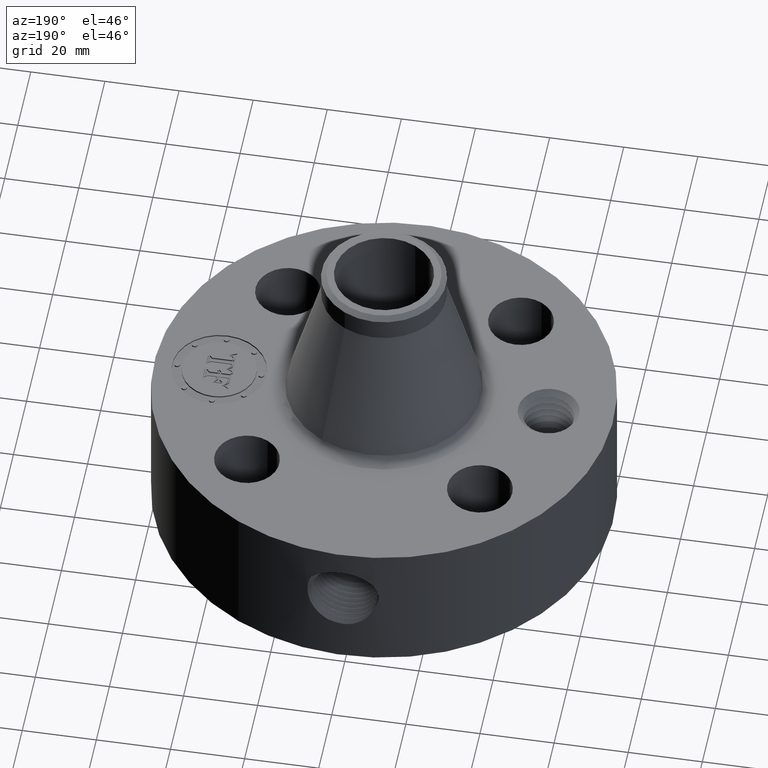
[diagram: clean part render]
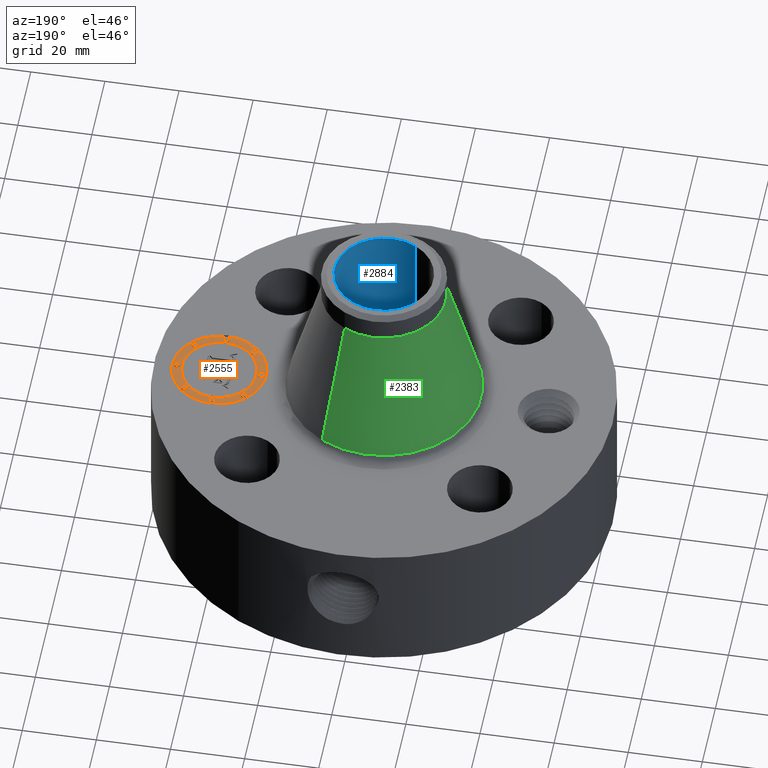
[diagram: same view with three faces highlighted in distinct colors, each labeled with its STEP entity id]
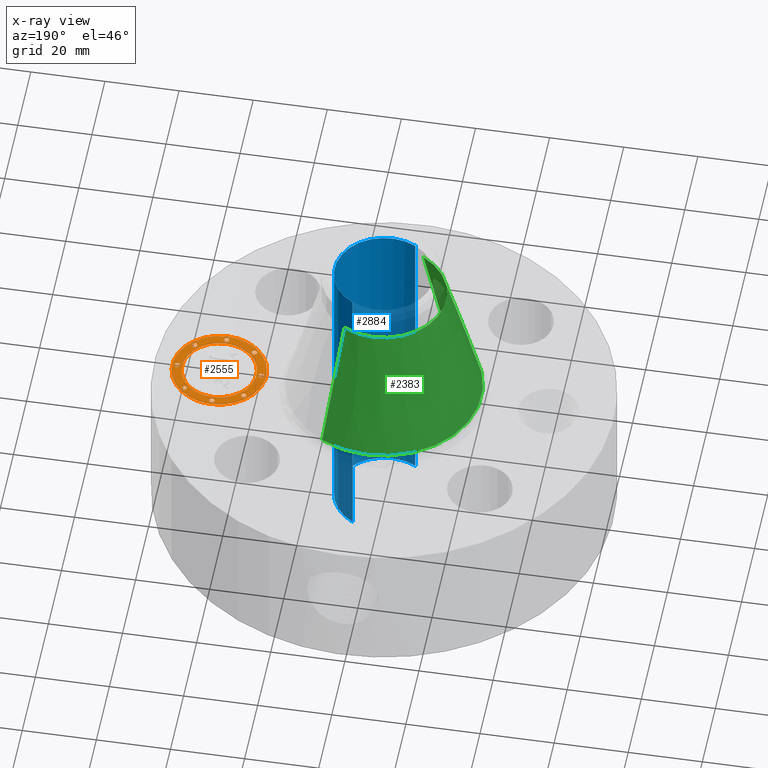
[diagram: x-ray of the same camera — body ghosted, the three highlighted faces saturated]
A machine part, auxiliary view with three faces highlighted in distinct colors.
The next image is the same camera in x-ray (body ghosted, the three faces saturated) — at least one of them is partly hidden behind the body in this view.
Their STEP definitions:

[orange] entity #2555 — the highlighted planar face has unit normal (0, 0, 1).
#1802=AXIS2_PLACEMENT_3D('Circle Axis2P3D',#1800,#1801,$) ;
#1829=AXIS2_PLACEMENT_3D('Circle Axis2P3D',#1827,#1828,$) ;
#2387=AXIS2_PLACEMENT_3D('Plane Axis2P3D',#2384,#2385,#2386) ;
#2395=AXIS2_PLACEMENT_3D('Circle Axis2P3D',#2393,#2394,$) ;
#2404=AXIS2_PLACEMENT_3D('Circle Axis2P3D',#2402,#2403,$) ;
#2413=AXIS2_PLACEMENT_3D('Circle Axis2P3D',#2411,#2412,$) ;
#2422=AXIS2_PLACEMENT_3D('Circle Axis2P3D',#2420,#2421,$) ;
#2431=AXIS2_PLACEMENT_3D('Circle Axis2P3D',#2429,#2430,$) ;
#2440=AXIS2_PLACEMENT_3D('Circle Axis2P3D',#2438,#2439,$) ;
#2449=AXIS2_PLACEMENT_3D('Circle Axis2P3D',#2447,#2448,$) ;
#2458=AXIS2_PLACEMENT_3D('Circle Axis2P3D',#2456,#2457,$) ;
#2467=AXIS2_PLACEMENT_3D('Circle Axis2P3D',#2465,#2466,$) ;
#2476=AXIS2_PLACEMENT_3D('Circle Axis2P3D',#2474,#2475,$) ;
#2485=AXIS2_PLACEMENT_3D('Circle Axis2P3D',#2483,#2484,$) ;
#2494=AXIS2_PLACEMENT_3D('Circle Axis2P3D',#2492,#2493,$) ;
#2503=AXIS2_PLACEMENT_3D('Circle Axis2P3D',#2501,#2502,$) ;
#2512=AXIS2_PLACEMENT_3D('Circle Axis2P3D',#2510,#2511,$) ;
#2521=AXIS2_PLACEMENT_3D('Circle Axis2P3D',#2519,#2520,$) ;
#2530=AXIS2_PLACEMENT_3D('Circle Axis2P3D',#2528,#2529,$) ;
#2539=AXIS2_PLACEMENT_3D('Circle Axis2P3D',#2537,#2538,$) ;
#2548=AXIS2_PLACEMENT_3D('Circle Axis2P3D',#2546,#2547,$) ;
#1797=CARTESIAN_POINT('Vertex',(1.75000000001,-0.499999995002,1.54500000001)) ;
#1800=CARTESIAN_POINT('Axis2P3D Location',(1.75000000001,-4.38103225949E-015,1.54500000001)) ;
#1804=CARTESIAN_POINT('Vertex',(1.75000000001,0.499999995002,1.54500000001)) ;
#1827=CARTESIAN_POINT('Axis2P3D Location',(1.75000000001,-4.38103225949E-015,1.54500000001)) ;
#2384=CARTESIAN_POINT('Axis2P3D Location',(0.,0.,1.54500000001)) ;
#2393=CARTESIAN_POINT('Axis2P3D Location',(1.75000000001,-4.38103225949E-015,1.54500000001)) ;
#2397=CARTESIAN_POINT('Vertex',(1.75000000001,-0.393939390002,1.54500000001)) ;
#2399=CARTESIAN_POINT('Vertex',(1.75000000001,0.393939390002,1.54500000001)) ;
#2402=CARTESIAN_POINT('Axis2P3D Location',(1.75000000001,-4.38103225949E-015,1.54500000001)) ;
#2411=CARTESIAN_POINT('Axis2P3D Location',(1.30303030751,-5.65258331292E-015,1.54500000001)) ;
#2415=CARTESIAN_POINT('Vertex',(1.30303030751,-0.0303030300001,1.54500000001)) ;
#2417=CARTESIAN_POINT('Vertex',(1.30303030751,0.0303030300001,1.54500000001)) ;
#2420=CARTESIAN_POINT('Axis2P3D Location',(1.30303030751,-5.65258331292E-015,1.54500000001)) ;
#2429=CARTESIAN_POINT('Axis2P3D Location',(1.75000000001,0.446969692502,1.54500000001)) ;
#2433=CARTESIAN_POINT('Vertex',(1.75000000001,0.416666662502,1.54500000001)) ;
#2435=CARTESIAN_POINT('Vertex',(1.75000000001,0.477272722502,1.54500000001)) ;
#2438=CARTESIAN_POINT('Axis2P3D Location',(1.75000000001,0.446969692502,1.54500000001)) ;
#2447=CARTESIAN_POINT('Axis2P3D Location',(1.43394469945,0.316055300553,1.54500000001)) ;
#2451=CARTESIAN_POINT('Vertex',(1.43394469945,0.285752270553,1.54500000001)) ;
#2453=CARTESIAN_POINT('Vertex',(1.43394469945,0.346358330553,1.54500000001)) ;
#2456=CARTESIAN_POINT('Axis2P3D Location',(1.43394469945,0.316055300553,1.54500000001)) ;
#2465=CARTESIAN_POINT('Axis2P3D Location',(2.19696969251,7.34549412211E-015,1.54500000001)) ;
#2469=CARTESIAN_POINT('Vertex',(2.19696969251,-0.0303030300001,1.54500000001)) ;
#2471=CARTESIAN_POINT('Vertex',(2.19696969251,0.0303030300001,1.54500000001)) ;
#2474=CARTESIAN_POINT('Axis2P3D Location',(2.19696969251,7.34549412211E-015,1.54500000001)) ;
#2483=CARTESIAN_POINT('Axis2P3D Location',(2.06605530056,0.316055300553,1.54500000001)) ;
#2487=CARTESIAN_POINT('Vertex',(2.06605530056,0.285752270553,1.54500000001)) ;
#2489=CARTESIAN_POINT('Vertex',(2.06605530056,0.346358330553,1.54500000001)) ;
#2492=CARTESIAN_POINT('Axis2P3D Location',(2.06605530056,0.316055300553,1.54500000001)) ;
#2501=CARTESIAN_POINT('Axis2P3D Location',(1.75000000001,-0.446969692502,1.54500000001)) ;
#2505=CARTESIAN_POINT('Vertex',(1.75000000001,-0.416666662502,1.54500000001)) ;
#2507=CARTESIAN_POINT('Vertex',(1.75000000001,-0.477272722502,1.54500000001)) ;
#2510=CARTESIAN_POINT('Axis2P3D Location',(1.75000000001,-0.446969692502,1.54500000001)) ;
#2519=CARTESIAN_POINT('Axis2P3D Location',(1.43394469945,-0.316055300553,1.54500000001)) ;
#2523=CARTESIAN_POINT('Vertex',(1.43394469945,-0.285752270553,1.54500000001)) ;
#2525=CARTESIAN_POINT('Vertex',(1.43394469945,-0.346358330553,1.54500000001)) ;
#2528=CARTESIAN_POINT('Axis2P3D Location',(1.43394469945,-0.316055300553,1.54500000001)) ;
#2537=CARTESIAN_POINT('Axis2P3D Location',(2.06605530056,-0.316055300553,1.54500000001)) ;
#2541=CARTESIAN_POINT('Vertex',(2.06605530056,-0.285752270553,1.54500000001)) ;
#2543=CARTESIAN_POINT('Vertex',(2.06605530056,-0.346358330553,1.54500000001)) ;
#2546=CARTESIAN_POINT('Axis2P3D Location',(2.06605530056,-0.316055300553,1.54500000001)) ;
#1801=DIRECTION('Axis2P3D Direction',(0.,0.,0.0393700787402)) ;
#1828=DIRECTION('Axis2P3D Direction',(0.,0.,0.0393700787402)) ;
#2385=DIRECTION('Axis2P3D Direction',(0.,0.,0.0393700787402)) ;
#2386=DIRECTION('Axis2P3D XDirection',(0.0393700787402,0.,0.)) ;
#2394=DIRECTION('Axis2P3D Direction',(0.,0.,0.0393700787402)) ;
#2403=DIRECTION('Axis2P3D Direction',(0.,0.,0.0393700787402)) ;
#2412=DIRECTION('Axis2P3D Direction',(0.,0.,0.0393700787402)) ;
#2421=DIRECTION('Axis2P3D Direction',(0.,0.,0.0393700787402)) ;
#2430=DIRECTION('Axis2P3D Direction',(0.,0.,0.0393700787402)) ;
#2439=DIRECTION('Axis2P3D Direction',(0.,0.,0.0393700787402)) ;
#2448=DIRECTION('Axis2P3D Direction',(0.,0.,0.0393700787402)) ;
#2457=DIRECTION('Axis2P3D Direction',(0.,0.,0.0393700787402)) ;
#2466=DIRECTION('Axis2P3D Direction',(0.,0.,0.0393700787402)) ;
#2475=DIRECTION('Axis2P3D Direction',(0.,0.,0.0393700787402)) ;
#2484=DIRECTION('Axis2P3D Direction',(0.,0.,0.0393700787402)) ;
#2493=DIRECTION('Axis2P3D Direction',(0.,0.,0.0393700787402)) ;
#2502=DIRECTION('Axis2P3D Direction',(0.,0.,0.0393700787402)) ;
#2511=DIRECTION('Axis2P3D Direction',(0.,0.,0.0393700787402)) ;
#2520=DIRECTION('Axis2P3D Direction',(0.,0.,0.0393700787402)) ;
#2529=DIRECTION('Axis2P3D Direction',(0.,0.,0.0393700787402)) ;
#2538=DIRECTION('Axis2P3D Direction',(0.,0.,0.0393700787402)) ;
#2547=DIRECTION('Axis2P3D Direction',(0.,0.,0.0393700787402)) ;
#2390=ORIENTED_EDGE('',*,*,#1806,.T.) ;
#2391=ORIENTED_EDGE('',*,*,#1831,.T.) ;
#2408=ORIENTED_EDGE('',*,*,#2401,.F.) ;
#2409=ORIENTED_EDGE('',*,*,#2406,.F.) ;
#2426=ORIENTED_EDGE('',*,*,#2419,.F.) ;
#2427=ORIENTED_EDGE('',*,*,#2424,.F.) ;
#2444=ORIENTED_EDGE('',*,*,#2437,.F.) ;
#2445=ORIENTED_EDGE('',*,*,#2442,.F.) ;
#2462=ORIENTED_EDGE('',*,*,#2455,.F.) ;
#2463=ORIENTED_EDGE('',*,*,#2460,.F.) ;
#2480=ORIENTED_EDGE('',*,*,#2473,.F.) ;
#2481=ORIENTED_EDGE('',*,*,#2478,.F.) ;
#2498=ORIENTED_EDGE('',*,*,#2491,.F.) ;
#2499=ORIENTED_EDGE('',*,*,#2496,.F.) ;
#2516=ORIENTED_EDGE('',*,*,#2509,.F.) ;
#2517=ORIENTED_EDGE('',*,*,#2514,.F.) ;
#2534=ORIENTED_EDGE('',*,*,#2527,.F.) ;
#2535=ORIENTED_EDGE('',*,*,#2532,.F.) ;
#2552=ORIENTED_EDGE('',*,*,#2545,.F.) ;
#2553=ORIENTED_EDGE('',*,*,#2550,.F.) ;
#2410=FACE_BOUND('',#2407,.T.) ;
#2428=FACE_BOUND('',#2425,.T.) ;
#2446=FACE_BOUND('',#2443,.T.) ;
#2464=FACE_BOUND('',#2461,.T.) ;
#2482=FACE_BOUND('',#2479,.T.) ;
#2500=FACE_BOUND('',#2497,.T.) ;
#2518=FACE_BOUND('',#2515,.T.) ;
#2536=FACE_BOUND('',#2533,.T.) ;
#2554=FACE_BOUND('',#2551,.T.) ;
#2555=ADVANCED_FACE('PartBody',(#2392,#2410,#2428,#2446,#2464,#2482,#2500,#2518,#2536,#2554),#2388,.T.) ;
#1803=CIRCLE('generated circle',#1802,0.499999995002) ;
#1830=CIRCLE('generated circle',#1829,0.499999995002) ;
#2396=CIRCLE('generated circle',#2395,0.393939390002) ;
#2405=CIRCLE('generated circle',#2404,0.393939390002) ;
#2414=CIRCLE('generated circle',#2413,0.0303030300001) ;
#2423=CIRCLE('generated circle',#2422,0.0303030300001) ;
#2432=CIRCLE('generated circle',#2431,0.0303030300001) ;
#2441=CIRCLE('generated circle',#2440,0.0303030300001) ;
#2450=CIRCLE('generated circle',#2449,0.0303030300001) ;
#2459=CIRCLE('generated circle',#2458,0.0303030300001) ;
#2468=CIRCLE('generated circle',#2467,0.0303030300001) ;
#2477=CIRCLE('generated circle',#2476,0.0303030300001) ;
#2486=CIRCLE('generated circle',#2485,0.0303030300001) ;
#2495=CIRCLE('generated circle',#2494,0.0303030300001) ;
#2504=CIRCLE('generated circle',#2503,0.0303030300001) ;
#2513=CIRCLE('generated circle',#2512,0.0303030300001) ;
#2522=CIRCLE('generated circle',#2521,0.0303030300001) ;
#2531=CIRCLE('generated circle',#2530,0.0303030300001) ;
#2540=CIRCLE('generated circle',#2539,0.0303030300001) ;
#2549=CIRCLE('generated circle',#2548,0.0303030300001) ;
#1806=EDGE_CURVE('',#1805,#1798,#1803,.T.) ;
#1831=EDGE_CURVE('',#1798,#1805,#1830,.T.) ;
#2401=EDGE_CURVE('',#2398,#2400,#2396,.T.) ;
#2406=EDGE_CURVE('',#2400,#2398,#2405,.T.) ;
#2419=EDGE_CURVE('',#2416,#2418,#2414,.T.) ;
#2424=EDGE_CURVE('',#2418,#2416,#2423,.T.) ;
#2437=EDGE_CURVE('',#2434,#2436,#2432,.T.) ;
#2442=EDGE_CURVE('',#2436,#2434,#2441,.T.) ;
#2455=EDGE_CURVE('',#2452,#2454,#2450,.T.) ;
#2460=EDGE_CURVE('',#2454,#2452,#2459,.T.) ;
#2473=EDGE_CURVE('',#2470,#2472,#2468,.T.) ;
#2478=EDGE_CURVE('',#2472,#2470,#2477,.T.) ;
#2491=EDGE_CURVE('',#2488,#2490,#2486,.T.) ;
#2496=EDGE_CURVE('',#2490,#2488,#2495,.T.) ;
#2509=EDGE_CURVE('',#2506,#2508,#2504,.T.) ;
#2514=EDGE_CURVE('',#2508,#2506,#2513,.T.) ;
#2527=EDGE_CURVE('',#2524,#2526,#2522,.T.) ;
#2532=EDGE_CURVE('',#2526,#2524,#2531,.T.) ;
#2545=EDGE_CURVE('',#2542,#2544,#2540,.T.) ;
#2550=EDGE_CURVE('',#2544,#2542,#2549,.T.) ;
#2389=EDGE_LOOP('',(#2390,#2391)) ;
#2407=EDGE_LOOP('',(#2408,#2409)) ;
#2425=EDGE_LOOP('',(#2426,#2427)) ;
#2443=EDGE_LOOP('',(#2444,#2445)) ;
#2461=EDGE_LOOP('',(#2462,#2463)) ;
#2479=EDGE_LOOP('',(#2480,#2481)) ;
#2497=EDGE_LOOP('',(#2498,#2499)) ;
#2515=EDGE_LOOP('',(#2516,#2517)) ;
#2533=EDGE_LOOP('',(#2534,#2535)) ;
#2551=EDGE_LOOP('',(#2552,#2553)) ;
#2392=FACE_OUTER_BOUND('',#2389,.T.) ;
#2388=PLANE('',#2387) ;
#1798=VERTEX_POINT('',#1797) ;
#1805=VERTEX_POINT('',#1804) ;
#2398=VERTEX_POINT('',#2397) ;
#2400=VERTEX_POINT('',#2399) ;
#2416=VERTEX_POINT('',#2415) ;
#2418=VERTEX_POINT('',#2417) ;
#2434=VERTEX_POINT('',#2433) ;
#2436=VERTEX_POINT('',#2435) ;
#2452=VERTEX_POINT('',#2451) ;
#2454=VERTEX_POINT('',#2453) ;
#2470=VERTEX_POINT('',#2469) ;
#2472=VERTEX_POINT('',#2471) ;
#2488=VERTEX_POINT('',#2487) ;
#2490=VERTEX_POINT('',#2489) ;
#2506=VERTEX_POINT('',#2505) ;
#2508=VERTEX_POINT('',#2507) ;
#2524=VERTEX_POINT('',#2523) ;
#2526=VERTEX_POINT('',#2525) ;
#2542=VERTEX_POINT('',#2541) ;
#2544=VERTEX_POINT('',#2543) ;

[blue] entity #2884 — the highlighted cylindrical surface (partial cylindrical patch) has radius 13.3223 mm, axis along (0, 0, -1).
#2071=AXIS2_PLACEMENT_3D('Circle Axis2P3D',#2069,#2070,$) ;
#2815=AXIS2_PLACEMENT_3D('Cylinder Axis2P3D',#2812,#2813,#2814) ;
#2819=AXIS2_PLACEMENT_3D('Circle Axis2P3D',#2817,#2818,$) ;
#2069=CARTESIAN_POINT('Axis2P3D Location',(0.,0.,0.)) ;
#2073=CARTESIAN_POINT('Vertex',(0.251458694999,0.460292053713,2.79741234551E-016)) ;
#2075=CARTESIAN_POINT('Vertex',(-0.251458694999,-0.460292053713,2.79741234551E-016)) ;
#2812=CARTESIAN_POINT('Axis2P3D Location',(0.,0.,1.65500000001)) ;
#2817=CARTESIAN_POINT('Axis2P3D Location',(0.,0.,3.31000000001)) ;
#2821=CARTESIAN_POINT('Vertex',(0.251458694999,0.460292053713,3.31000000001)) ;
#2823=CARTESIAN_POINT('Vertex',(-0.251458694999,-0.460292053713,3.31000000001)) ;
#2826=CARTESIAN_POINT('Line Origine',(0.251458694999,0.460292053713,1.65500000001)) ;
#2831=CARTESIAN_POINT('Line Origine',(-0.251458694999,-0.460292053713,1.65500000001)) ;
#2843=CARTESIAN_POINT('Control Point',(0.109697820237,-0.512900222497,0.880071807678)) ;
#2844=CARTESIAN_POINT('Control Point',(0.103067995138,-0.514318192952,0.867935994238)) ;
#2845=CARTESIAN_POINT('Control Point',(0.0947719695419,-0.515980503399,0.856739003863)) ;
#2846=CARTESIAN_POINT('Control Point',(0.0849803702637,-0.51773919703,0.846766683973)) ;
#2847=CARTESIAN_POINT('Control Point',(0.0538199881072,-0.522434964879,0.82278473966)) ;
#2848=CARTESIAN_POINT('Control Point',(0.014949330597,-0.525251537098,0.811930833717)) ;
#2849=CARTESIAN_POINT('Control Point',(-0.0116326804145,-0.525346375616,0.811582790696)) ;
#2850=CARTESIAN_POINT('Control Point',(-0.0508447925068,-0.522756079786,0.821451412034)) ;
#2851=CARTESIAN_POINT('Control Point',(-0.0826523564023,-0.518124437443,0.844683886722)) ;
#2852=CARTESIAN_POINT('Control Point',(-0.0927261783304,-0.516359982355,0.854453516056)) ;
#2853=CARTESIAN_POINT('Control Point',(-0.117112916642,-0.511563161852,0.885769043993)) ;
#2854=CARTESIAN_POINT('Control Point',(-0.128164416094,-0.508593381511,0.925004093711)) ;
#2855=CARTESIAN_POINT('Control Point',(-0.128487390485,-0.508500379864,0.951961602389)) ;
#2856=CARTESIAN_POINT('Control Point',(-0.121927405505,-0.510284589305,0.977542086655)) ;
#2857=CARTESIAN_POINT('Control Point',(-0.109697820237,-0.512900222497,0.99992819233)) ;
#2858=CARTESIAN_POINT('Vertex',(0.109697820237,-0.512900222497,0.880071807678)) ;
#2860=CARTESIAN_POINT('Vertex',(-0.109697820237,-0.512900222497,0.99992819233)) ;
#2864=CARTESIAN_POINT('Control Point',(-0.109697820237,-0.512900222497,0.99992819233)) ;
#2865=CARTESIAN_POINT('Control Point',(-0.103067995138,-0.514318192952,1.01206400577)) ;
#2866=CARTESIAN_POINT('Control Point',(-0.0947719695411,-0.515980503399,1.02326099615)) ;
#2867=CARTESIAN_POINT('Control Point',(-0.0849803702652,-0.517739197029,1.03323331603)) ;
#2868=CARTESIAN_POINT('Control Point',(-0.0538199881087,-0.522434964879,1.05721526035)) ;
#2869=CARTESIAN_POINT('Control Point',(-0.0149493305982,-0.525251537098,1.06806916629)) ;
#2870=CARTESIAN_POINT('Control Point',(0.0116326804146,-0.525346375616,1.06841720931)) ;
#2871=CARTESIAN_POINT('Control Point',(0.0508447925082,-0.522756079786,1.05854858797)) ;
#2872=CARTESIAN_POINT('Control Point',(0.0826523564046,-0.518124437443,1.03531611328)) ;
#2873=CARTESIAN_POINT('Control Point',(0.0927261783279,-0.516359982355,1.02554648395)) ;
#2874=CARTESIAN_POINT('Control Point',(0.117112916639,-0.511563161853,0.994230956019)) ;
#2875=CARTESIAN_POINT('Control Point',(0.128164416092,-0.508593381511,0.954995906304)) ;
#2876=CARTESIAN_POINT('Control Point',(0.128487390483,-0.508500379864,0.928038397612)) ;
#2877=CARTESIAN_POINT('Control Point',(0.121927405503,-0.510284589305,0.90245791335)) ;
#2878=CARTESIAN_POINT('Control Point',(0.109697820237,-0.512900222497,0.880071807678)) ;
#2070=DIRECTION('Axis2P3D Direction',(0.,0.,-0.0393700787402)) ;
#2813=DIRECTION('Axis2P3D Direction',(0.,0.,-0.0393700787402)) ;
#2814=DIRECTION('Axis2P3D XDirection',(-0.0188750212049,-0.0345504945626,0.)) ;
#2818=DIRECTION('Axis2P3D Direction',(0.,0.,-0.0393700787402)) ;
#2827=DIRECTION('Vector Direction',(0.,0.,-0.0393700787402)) ;
#2832=DIRECTION('Vector Direction',(0.,0.,-0.0393700787402)) ;
#2828=VECTOR('Line Direction',#2827,0.0393700787402) ;
#2833=VECTOR('Line Direction',#2832,0.0393700787402) ;
#2837=ORIENTED_EDGE('',*,*,#2825,.F.) ;
#2838=ORIENTED_EDGE('',*,*,#2830,.T.) ;
#2839=ORIENTED_EDGE('',*,*,#2077,.T.) ;
#2840=ORIENTED_EDGE('',*,*,#2835,.F.) ;
#2881=ORIENTED_EDGE('',*,*,#2862,.F.) ;
#2882=ORIENTED_EDGE('',*,*,#2879,.F.) ;
#2883=FACE_BOUND('',#2880,.T.) ;
#2884=ADVANCED_FACE('PartBody',(#2841,#2883),#2816,.F.) ;
#2842=B_SPLINE_CURVE_WITH_KNOTS('',5,(#2843,#2844,#2845,#2846,#2847,#2848,#2849,#2850,#2851,#2852,#2853,#2854,#2855,#2856,#2857),.UNSPECIFIED.,.F.,.U.,(6,3,3,3,6),(0.,2.49672561326,7.04499234107,9.55164643693,14.1571855459),.UNSPECIFIED.) ;
#2863=B_SPLINE_CURVE_WITH_KNOTS('',5,(#2864,#2865,#2866,#2867,#2868,#2869,#2870,#2871,#2872,#2873,#2874,#2875,#2876,#2877,#2878),.UNSPECIFIED.,.F.,.U.,(6,3,3,3,6),(0.,2.49672561338,7.04499234114,9.5516464373,14.1571855457),.UNSPECIFIED.) ;
#2072=CIRCLE('generated circle',#2071,0.524500000002) ;
#2820=CIRCLE('generated circle',#2819,0.524500000002) ;
#2816=CYLINDRICAL_SURFACE('generated cylinder',#2815,0.524500000002) ;
#2077=EDGE_CURVE('',#2074,#2076,#2072,.T.) ;
#2825=EDGE_CURVE('',#2822,#2824,#2820,.T.) ;
#2830=EDGE_CURVE('',#2822,#2074,#2829,.T.) ;
#2835=EDGE_CURVE('',#2824,#2076,#2834,.T.) ;
#2862=EDGE_CURVE('',#2859,#2861,#2842,.T.) ;
#2879=EDGE_CURVE('',#2861,#2859,#2863,.T.) ;
#2836=EDGE_LOOP('',(#2837,#2838,#2839,#2840)) ;
#2880=EDGE_LOOP('',(#2881,#2882)) ;
#2841=FACE_OUTER_BOUND('',#2836,.T.) ;
#2829=LINE('Line',#2826,#2828) ;
#2834=LINE('Line',#2831,#2833) ;
#2074=VERTEX_POINT('',#2073) ;
#2076=VERTEX_POINT('',#2075) ;
#2822=VERTEX_POINT('',#2821) ;
#2824=VERTEX_POINT('',#2823) ;
#2859=VERTEX_POINT('',#2858) ;
#2861=VERTEX_POINT('',#2860) ;

[green] entity #2383 — the highlighted conical surface has half-angle 15.22 deg.
#1778=AXIS2_PLACEMENT_3D('Circle Axis2P3D',#1776,#1777,$) ;
#2344=AXIS2_PLACEMENT_3D('Cone Axis2P3D',#2341,#2342,#2343) ;
#2374=AXIS2_PLACEMENT_3D('Circle Axis2P3D',#2372,#2373,$) ;
#1754=CARTESIAN_POINT('Vertex',(0.496647878182,0.909107843027,1.64849707969)) ;
#1761=CARTESIAN_POINT('Vertex',(-0.496647878182,-0.909107843027,1.64849707969)) ;
#1776=CARTESIAN_POINT('Axis2P3D Location',(0.,0.,1.64849707969)) ;
#2341=CARTESIAN_POINT('Axis2P3D Location',(0.,0.,3.03022616857)) ;
#2346=CARTESIAN_POINT('Line Origine',(0.406534366831,0.744156166938,2.33936162413)) ;
#2350=CARTESIAN_POINT('Vertex',(0.31642085548,0.57920449085,3.03022616857)) ;
#2357=CARTESIAN_POINT('Vertex',(-0.31642085548,-0.57920449085,3.03022616857)) ;
#2360=CARTESIAN_POINT('Line Origine',(-0.406534366831,-0.744156166938,2.33936162413)) ;
#2372=CARTESIAN_POINT('Axis2P3D Location',(0.,0.,3.03022616857)) ;
#1777=DIRECTION('Axis2P3D Direction',(0.,0.,-0.0393700787402)) ;
#2342=DIRECTION('Axis2P3D Direction',(0.,0.,-0.0393700787402)) ;
#2343=DIRECTION('Axis2P3D XDirection',(-0.0188750212049,-0.0345504945626,0.)) ;
#2347=DIRECTION('Vector Direction',(0.00495515240905,0.00907034564397,-0.0379891878632)) ;
#2361=DIRECTION('Vector Direction',(-0.00495515240905,-0.00907034564397,-0.0379891878632)) ;
#2373=DIRECTION('Axis2P3D Direction',(0.,0.,-0.0393700787402)) ;
#2348=VECTOR('Line Direction',#2347,0.0393700787402) ;
#2362=VECTOR('Line Direction',#2361,0.0393700787402) ;
#2378=ORIENTED_EDGE('',*,*,#1780,.F.) ;
#2379=ORIENTED_EDGE('',*,*,#2364,.T.) ;
#2380=ORIENTED_EDGE('',*,*,#2376,.T.) ;
#2381=ORIENTED_EDGE('',*,*,#2352,.F.) ;
#2383=ADVANCED_FACE('PartBody',(#2382),#2345,.T.) ;
#1779=CIRCLE('generated circle',#1778,1.03592286641) ;
#2375=CIRCLE('generated circle',#2374,0.660000000003) ;
#2345=CONICAL_SURFACE('Cone',#2344,0.660000000003,0.2656373701) ;
#1780=EDGE_CURVE('',#1762,#1755,#1779,.T.) ;
#2352=EDGE_CURVE('',#1755,#2351,#2349,.F.) ;
#2364=EDGE_CURVE('',#1762,#2358,#2363,.F.) ;
#2376=EDGE_CURVE('',#2358,#2351,#2375,.T.) ;
#2377=EDGE_LOOP('',(#2378,#2379,#2380,#2381)) ;
#2382=FACE_OUTER_BOUND('',#2377,.T.) ;
#2349=LINE('Line',#2346,#2348) ;
#2363=LINE('Line',#2360,#2362) ;
#1755=VERTEX_POINT('',#1754) ;
#1762=VERTEX_POINT('',#1761) ;
#2351=VERTEX_POINT('',#2350) ;
#2358=VERTEX_POINT('',#2357) ;